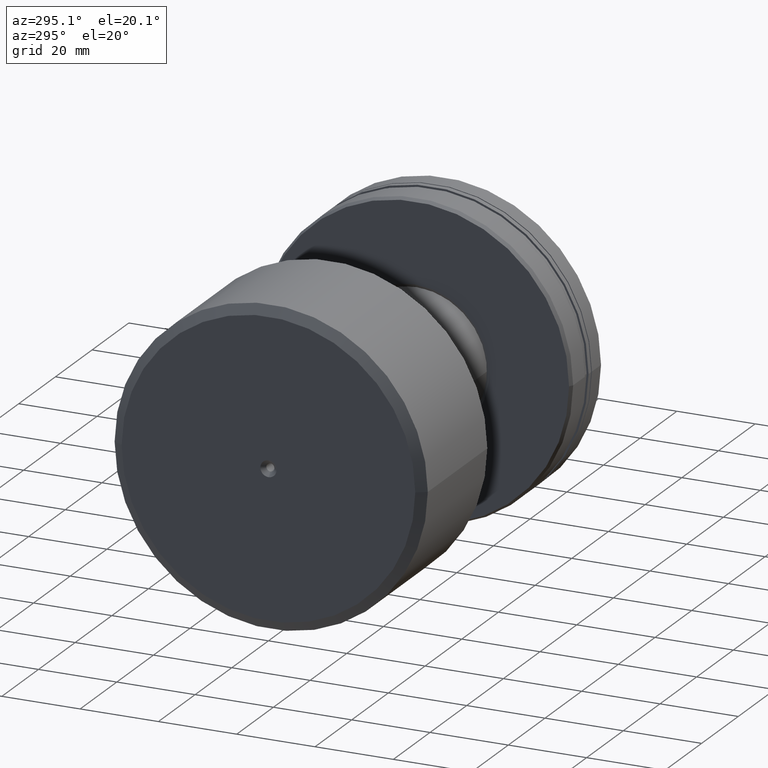
[diagram: clean part render]
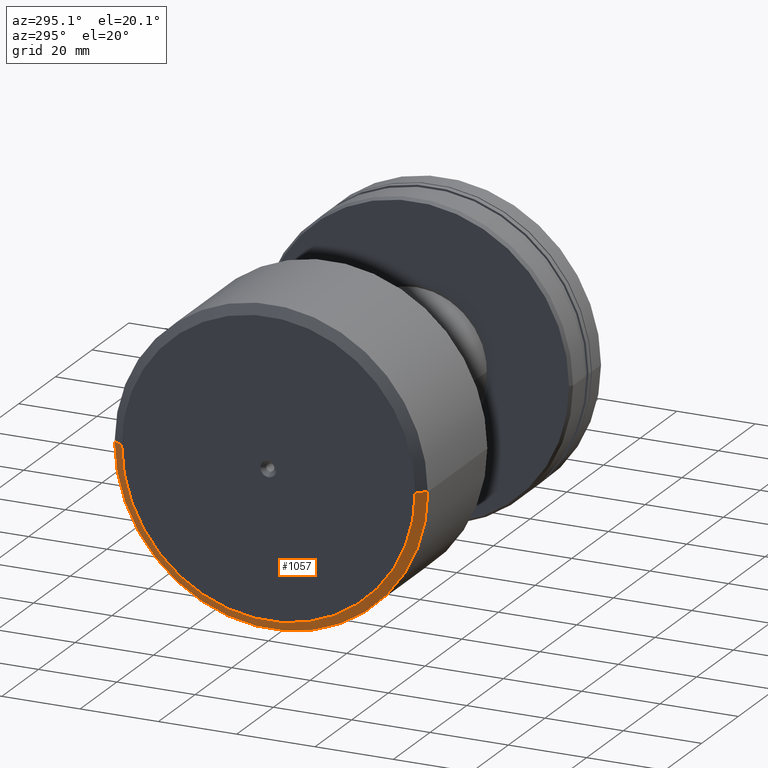
[diagram: same view with one face highlighted and labeled with its STEP entity id]
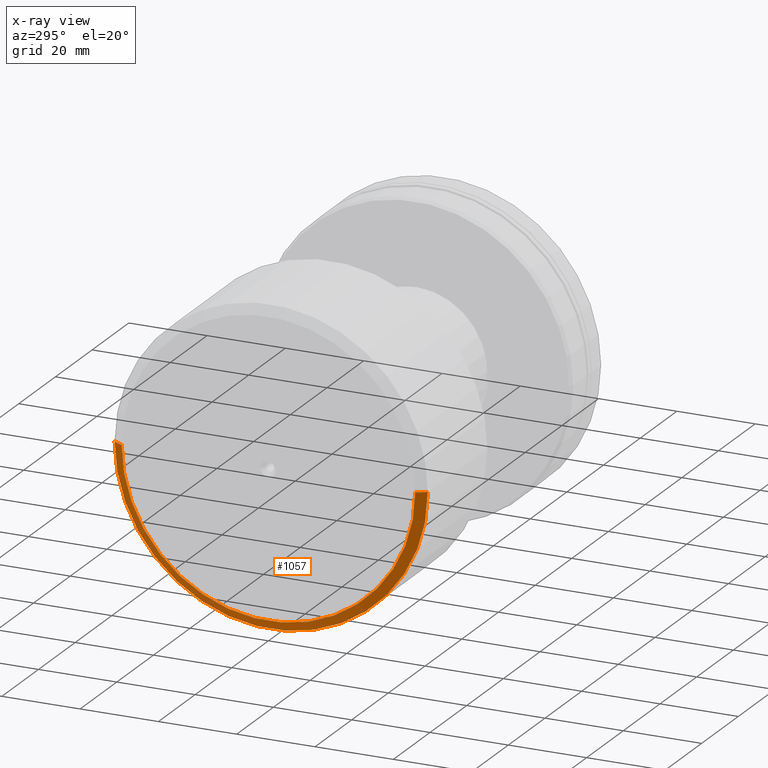
[diagram: x-ray of the same camera — body ghosted, the highlighted face saturated]
A machine part, auxiliary view. The second image highlights one B-rep face of the part: STEP entity #1057.
The next image is the same camera in x-ray: the body ghosted, the highlighted face saturated — about 0% of this face is hidden behind the body in this view.
In plain terms, the highlighted conical surface has half-angle 59.036 deg.
Its self-contained STEP definition (entity closure, byte-faithful):
#71 = ORIENTED_EDGE ( 'NONE', *, *, #294, .F. ) ;
#121 = DIRECTION ( 'NONE',  ( 1.000000000000000000, 1.069542322069065801E-17, 0.000000000000000000 ) ) ;
#294 = EDGE_CURVE ( 'NONE', #529, #1052, #2075, .T. ) ;
#327 = DIRECTION ( 'NONE',  ( 0.5144957554275262357, 0.8574929257125444293, 0.000000000000000000 ) ) ;
#440 = VERTEX_POINT ( 'NONE', #469 ) ;
#469 = CARTESIAN_POINT ( 'NONE',  ( 1.500000000000004219, 39.99999999999999289, 0.000000000000000000 ) ) ;
#505 = CARTESIAN_POINT ( 'NONE',  ( 3.790268755250773542E-15, 37.49999999999999289, 0.000000000000000000 ) ) ;
#529 = VERTEX_POINT ( 'NONE', #917 ) ;
#582 = EDGE_LOOP ( 'NONE', ( #915, #71, #1978, #1341 ) ) ;
#606 = LINE ( 'NONE', #2099, #1524 ) ;
#629 = FACE_OUTER_BOUND ( 'NONE', #582, .T. ) ;
#657 = DIRECTION ( 'NONE',  ( -1.069542322069066725E-17, 1.000000000000000000, 0.000000000000000000 ) ) ;
#662 = EDGE_CURVE ( 'NONE', #1052, #1847, #606, .T. ) ;
#750 = AXIS2_PLACEMENT_3D ( 'NONE', #1119, #2160, #1975 ) ;
#796 = CIRCLE ( 'NONE', #1902, 39.99999999999999289 ) ;
#915 = ORIENTED_EDGE ( 'NONE', *, *, #662, .F. ) ;
#917 = CARTESIAN_POINT ( 'NONE',  ( 3.790268755250773542E-15, 37.49999999999999289, 0.000000000000000000 ) ) ;
#1010 = EDGE_CURVE ( 'NONE', #440, #1847, #796, .T. ) ;
#1052 = VERTEX_POINT ( 'NONE', #1893 ) ;
#1057 = ADVANCED_FACE ( 'NONE', ( #629 ), #2020, .T. ) ;
#1119 = CARTESIAN_POINT ( 'NONE',  ( 4.191347126026673560E-15, 4.482823137768074044E-32, 0.000000000000000000 ) ) ;
#1222 = VECTOR ( 'NONE', #327, 999.9999999999998863 ) ;
#1341 = ORIENTED_EDGE ( 'NONE', *, *, #1010, .T. ) ;
#1344 = DIRECTION ( 'NONE',  ( 0.5144957554275262357, -0.8574929257125444293, 1.050125966765366654E-16 ) ) ;
#1446 = LINE ( 'NONE', #505, #1222 ) ;
#1455 = CARTESIAN_POINT ( 'NONE',  ( 1.500000000000005107, -39.99999999999999289, 4.898587196589412237E-15 ) ) ;
#1524 = VECTOR ( 'NONE', #1344, 999.9999999999998863 ) ;
#1585 = DIRECTION ( 'NONE',  ( -1.000000000000000000, -1.069542322069065801E-17, -0.000000000000000000 ) ) ;
#1611 = AXIS2_PLACEMENT_3D ( 'NONE', #1744, #121, #657 ) ;
#1701 = EDGE_CURVE ( 'NONE', #529, #440, #1446, .T. ) ;
#1722 = CARTESIAN_POINT ( 'NONE',  ( 1.500000000000004663, 1.604313483103603400E-17, 0.000000000000000000 ) ) ;
#1744 = CARTESIAN_POINT ( 'NONE',  ( 4.191347126026673560E-15, 4.482823137768074044E-32, 0.000000000000000000 ) ) ;
#1847 = VERTEX_POINT ( 'NONE', #1455 ) ;
#1893 = CARTESIAN_POINT ( 'NONE',  ( 4.592425496802573578E-15, -37.49999999999999289, 4.745506346695992513E-15 ) ) ;
#1902 = AXIS2_PLACEMENT_3D ( 'NONE', #1722, #1585, #2269 ) ;
#1975 = DIRECTION ( 'NONE',  ( 1.069542322069066725E-17, -1.000000000000000000, 0.000000000000000000 ) ) ;
#1978 = ORIENTED_EDGE ( 'NONE', *, *, #1701, .T. ) ;
#2020 = CONICAL_SURFACE ( 'NONE', #1611, 37.49999999999999289, 1.030376826524312728 ) ;
#2075 = CIRCLE ( 'NONE', #750, 37.49999999999999289 ) ;
#2099 = CARTESIAN_POINT ( 'NONE',  ( 4.592425496802573578E-15, -37.49999999999999289, 4.592425496802573578E-15 ) ) ;
#2160 = DIRECTION ( 'NONE',  ( -1.000000000000000000, -1.069542322069065801E-17, -0.000000000000000000 ) ) ;
#2269 = DIRECTION ( 'NONE',  ( 1.084202172485504588E-17, -1.000000000000000000, 0.000000000000000000 ) ) ;